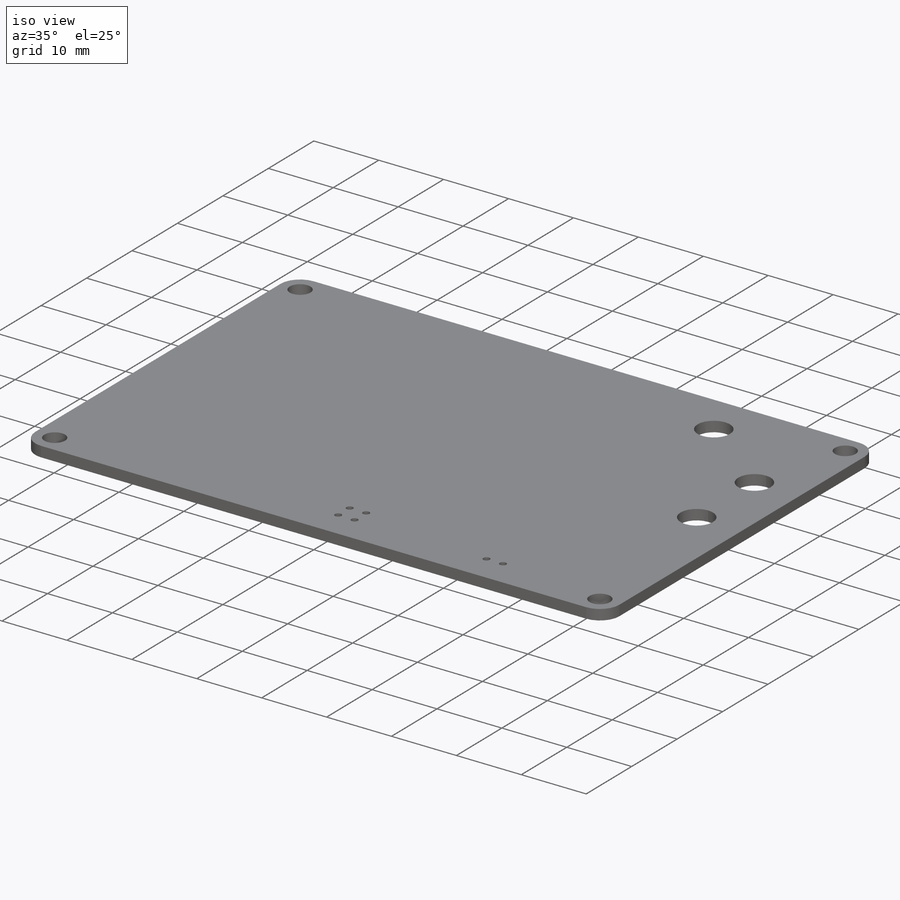
[diagram: iso view]
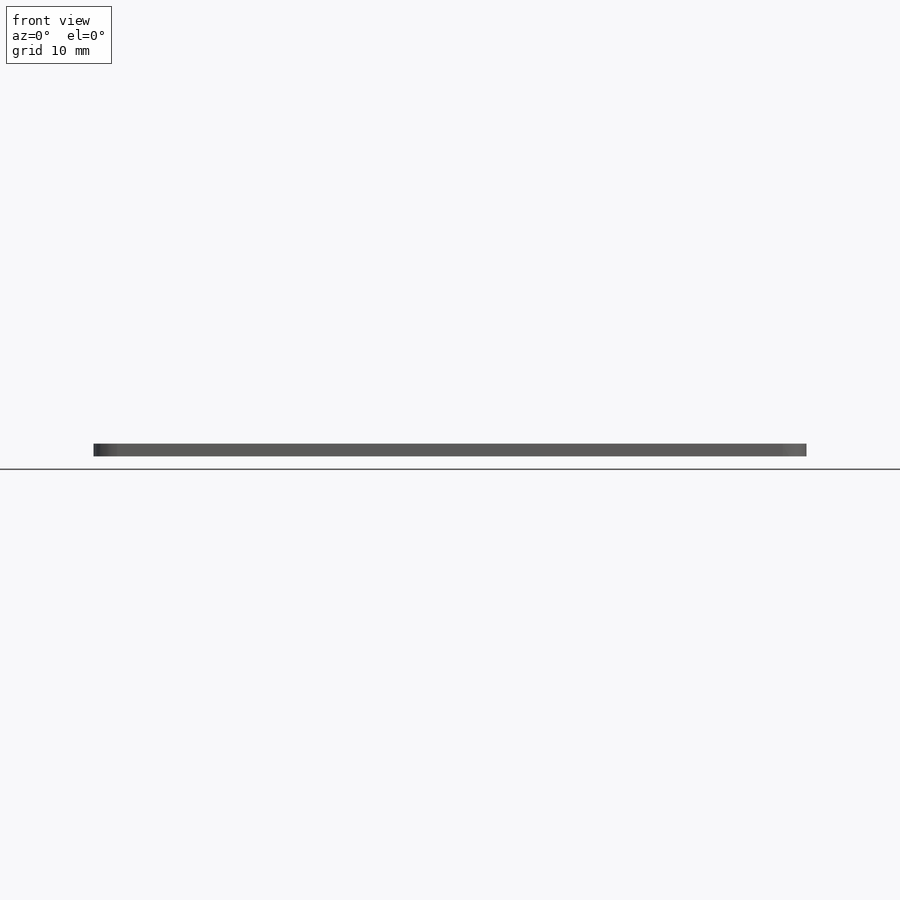
[diagram: front view]
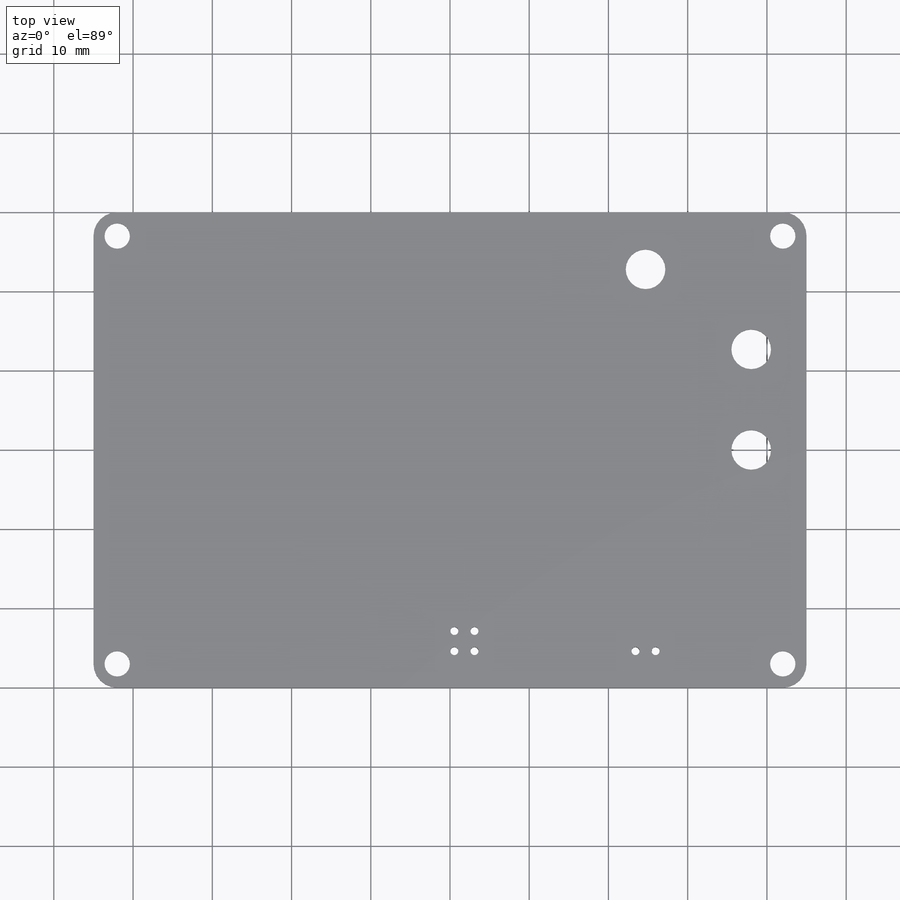
[diagram: top view]
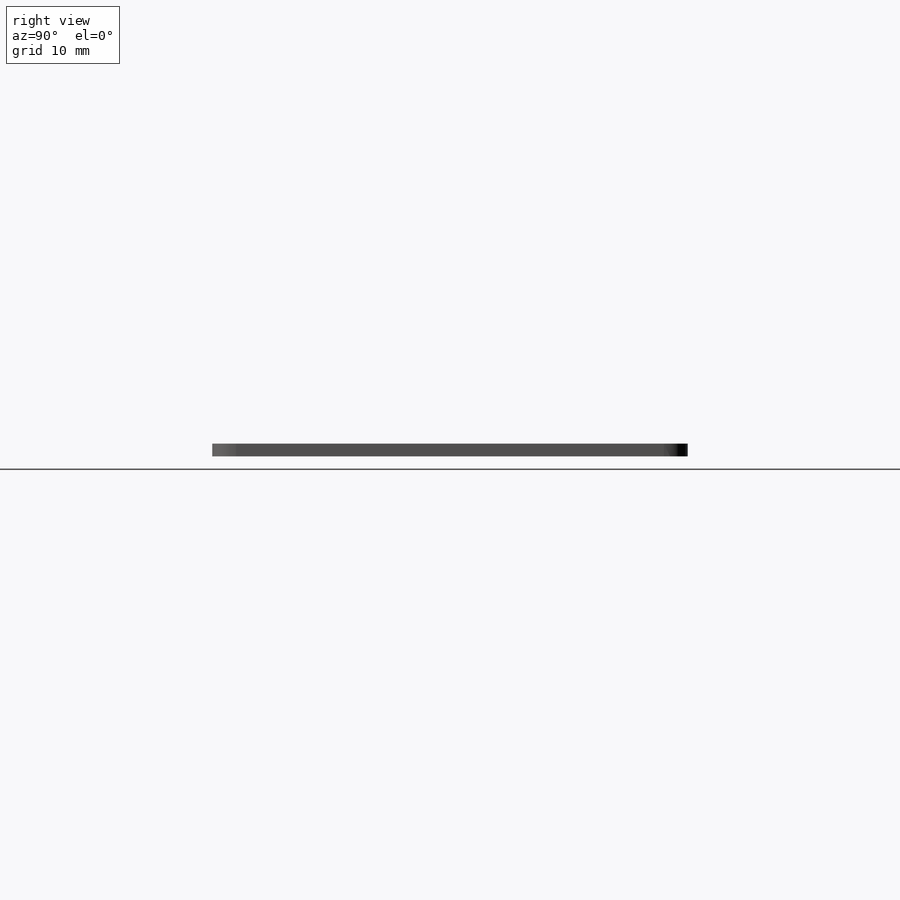
[diagram: right view]
SOLIDWORKS PART (.sldprt)
format: sldprt  version: not decoded by parser v0  size: 220,160 bytes
history: native  units: mm
features: sketch x3, cut_extrude x2, material x1, extrude x1, fillet x1 (+11 scaffold rows collapsed)
feature tree (19):
  scaffold x11  (default folders/planes/origin — collapsed)
  material  "Material <not specified>"
  sketch  "Sketch1"  dims[D1=90.0mm D2=60.0mm]
  extrude  "Boss-Extrude1"  Depth=1.6mm
  sketch  "Sketch2"  dims[c1.D1=3.2mm c1.D3=3.2mm c1.D2=3.0mm c2.D3=3.0mm c2.D4=3.0mm c2.D5=3.0mm]
  cut_extrude  "Cut-Extrude1"  Depth=1.6mm
  fillet  "Fillet1"  Radius=3mm
  sketch  "Sketch3"  dims[c1.D1=1.0mm c1.D2=1.0mm c1.D3=1.0mm c1.D4=1.0mm c1.D5=1.0mm c1.D6=1.0mm c1.D7=5.0mm c1.D8=5.0mm c1.D9=5.0mm c1.D10=25.4mm c1.D11=44.45mm c1.D12=25.4mm c1.D13=41.91mm c1.D14=22.86mm c1.D15=22.86mm c2.D12=21.59mm c2.D15=19.05mm c2.D16=6.985mm c2.D17=12.7mm c2.D18=20.32mm c2.D19=7.2mm]
  cut_extrude  "Cut-Extrude2"  Depth=1.6mm
decode coverage: 7 of 7 modeling features carry decoded parameters
note: suppression state not decoded; provenance and decode notes live in map.json
